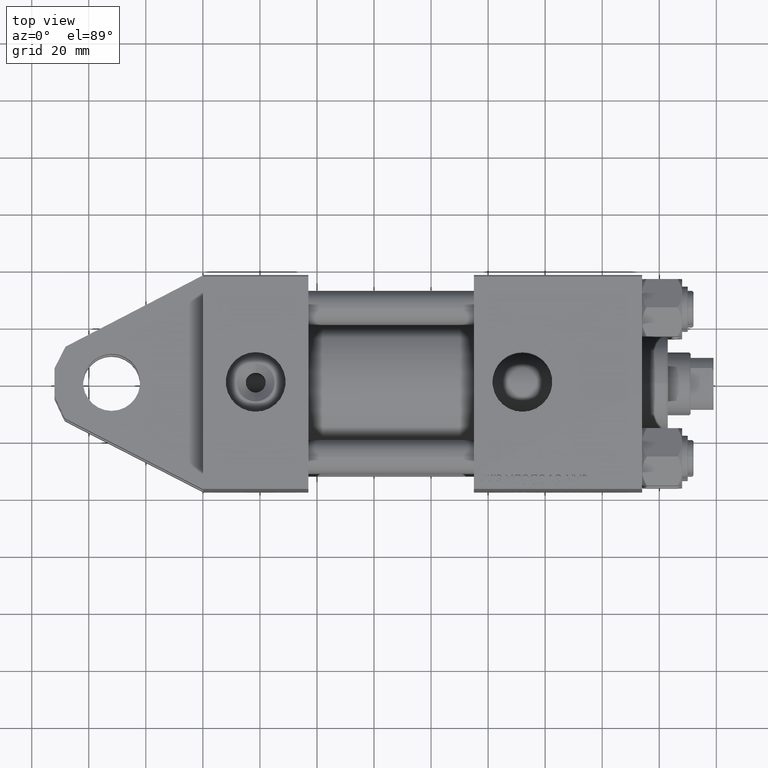
[diagram: clean part render]
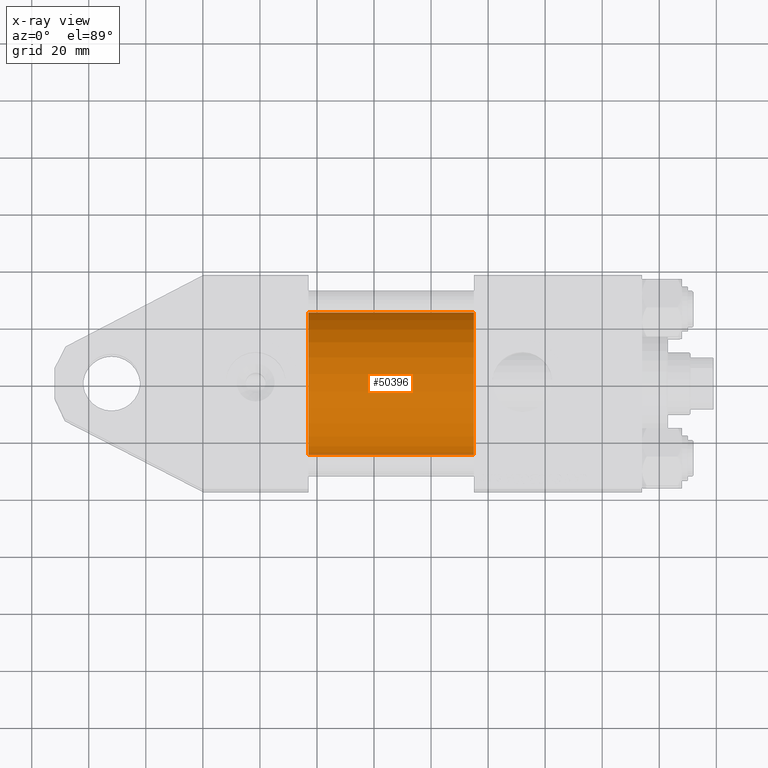
[diagram: x-ray — body ghosted, one internal face saturated and labeled with its STEP entity id]
A machine part, top view, then the same camera in x-ray: the body is ghosted and one INTERNAL B-rep face — a face not visible from any outside direction — is saturated and labeled: STEP entity #50396.
In plain terms, the highlighted cylindrical surface (partial cylindrical patch) has radius 25 mm, axis along (-1, -0, 0).
Its self-contained STEP definition (entity closure, byte-faithful):
#994 = LINE ( 'NONE', #40740, #20252 ) ;
#1717 = FACE_OUTER_BOUND ( 'NONE', #35796, .T. ) ;
#2231 = CIRCLE ( 'NONE', #28786, 25.00000000000000000 ) ;
#5951 = CARTESIAN_POINT ( 'NONE',  ( 95.00000000000000000, -3.469446951953614189E-15, 0.000000000000000000 ) ) ;
#9508 = CIRCLE ( 'NONE', #32754, 25.00000000000000000 ) ;
#11038 = CARTESIAN_POINT ( 'NONE',  ( 95.00000000000000000, -3.469446951953614189E-15, 0.000000000000000000 ) ) ;
#11241 = AXIS2_PLACEMENT_3D ( 'NONE', #11038, #45631, #18080 ) ;
#13242 = EDGE_CURVE ( 'NONE', #22637, #40067, #9508, .T. ) ;
#14346 = DIRECTION ( 'NONE',  ( -1.000000000000000000, -0.000000000000000000, -0.000000000000000000 ) ) ;
#17558 = CYLINDRICAL_SURFACE ( 'NONE', #11241, 25.00000000000000000 ) ;
#17796 = EDGE_CURVE ( 'NONE', #18434, #40067, #26553, .T. ) ;
#18080 = DIRECTION ( 'NONE',  ( 0.000000000000000000, 0.000000000000000000, 1.000000000000000000 ) ) ;
#18434 = VERTEX_POINT ( 'NONE', #34692 ) ;
#19268 = CARTESIAN_POINT ( 'NONE',  ( 95.00000000000000000, -4.078299540852317872E-16, -25.00000000000000000 ) ) ;
#20252 = VECTOR ( 'NONE', #20981, 1000.000000000000000 ) ;
#20981 = DIRECTION ( 'NONE',  ( -1.000000000000000000, -0.000000000000000000, -0.000000000000000000 ) ) ;
#21804 = DIRECTION ( 'NONE',  ( 0.000000000000000000, 0.000000000000000000, -1.000000000000000000 ) ) ;
#22637 = VERTEX_POINT ( 'NONE', #24848 ) ;
#24848 = CARTESIAN_POINT ( 'NONE',  ( 37.00000000000000000, -3.469446951953614189E-15, 25.00000000000000000 ) ) ;
#25071 = DIRECTION ( 'NONE',  ( 0.000000000000000000, 0.000000000000000000, -1.000000000000000000 ) ) ;
#26553 = LINE ( 'NONE', #19268, #29305 ) ;
#28786 = AXIS2_PLACEMENT_3D ( 'NONE', #5951, #45983, #21804 ) ;
#29305 = VECTOR ( 'NONE', #14346, 1000.000000000000000 ) ;
#30846 = VERTEX_POINT ( 'NONE', #39774 ) ;
#30888 = EDGE_CURVE ( 'NONE', #30846, #18434, #2231, .T. ) ;
#32754 = AXIS2_PLACEMENT_3D ( 'NONE', #36263, #49257, #25071 ) ;
#34469 = CARTESIAN_POINT ( 'NONE',  ( 37.00000000000000000, -4.078299540852317872E-16, -25.00000000000000000 ) ) ;
#34692 = CARTESIAN_POINT ( 'NONE',  ( 95.00000000000000000, -4.078299540852317872E-16, -25.00000000000000000 ) ) ;
#35796 = EDGE_LOOP ( 'NONE', ( #36162, #46586, #49760, #36352 ) ) ;
#36162 = ORIENTED_EDGE ( 'NONE', *, *, #30888, .T. ) ;
#36263 = CARTESIAN_POINT ( 'NONE',  ( 37.00000000000000000, -3.469446951953614189E-15, 0.000000000000000000 ) ) ;
#36352 = ORIENTED_EDGE ( 'NONE', *, *, #47516, .F. ) ;
#39774 = CARTESIAN_POINT ( 'NONE',  ( 95.00000000000000000, -3.469446951953614189E-15, 25.00000000000000000 ) ) ;
#40067 = VERTEX_POINT ( 'NONE', #34469 ) ;
#40740 = CARTESIAN_POINT ( 'NONE',  ( 95.00000000000000000, -3.469446951953614189E-15, 25.00000000000000000 ) ) ;
#45631 = DIRECTION ( 'NONE',  ( -1.000000000000000000, -0.000000000000000000, -0.000000000000000000 ) ) ;
#45983 = DIRECTION ( 'NONE',  ( 1.000000000000000000, 0.000000000000000000, 0.000000000000000000 ) ) ;
#46586 = ORIENTED_EDGE ( 'NONE', *, *, #17796, .T. ) ;
#47516 = EDGE_CURVE ( 'NONE', #30846, #22637, #994, .T. ) ;
#49257 = DIRECTION ( 'NONE',  ( 1.000000000000000000, 0.000000000000000000, 0.000000000000000000 ) ) ;
#49760 = ORIENTED_EDGE ( 'NONE', *, *, #13242, .F. ) ;
#50396 = ADVANCED_FACE ( 'NONE', ( #1717 ), #17558, .F. ) ;